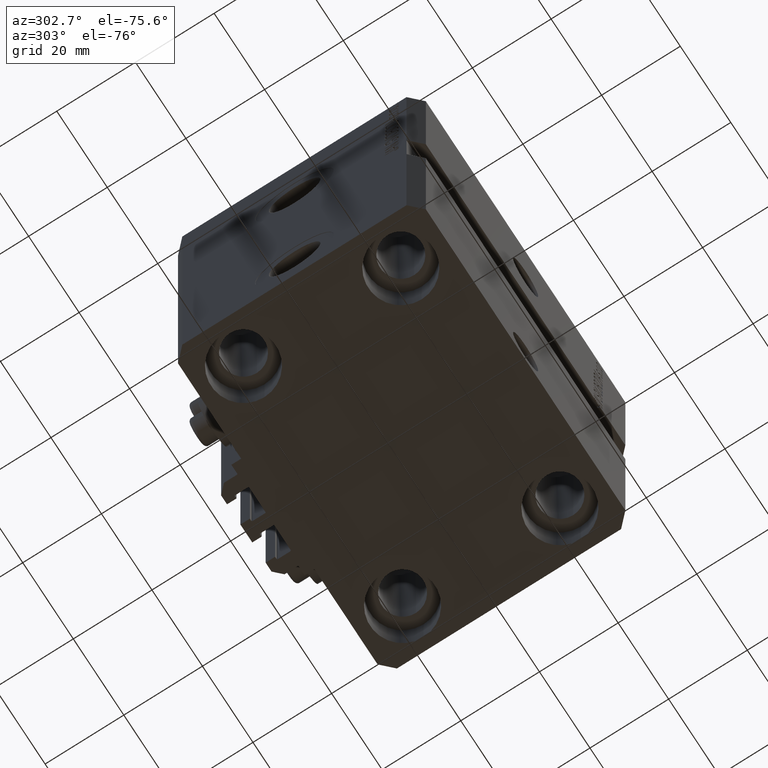
[diagram: clean part render]
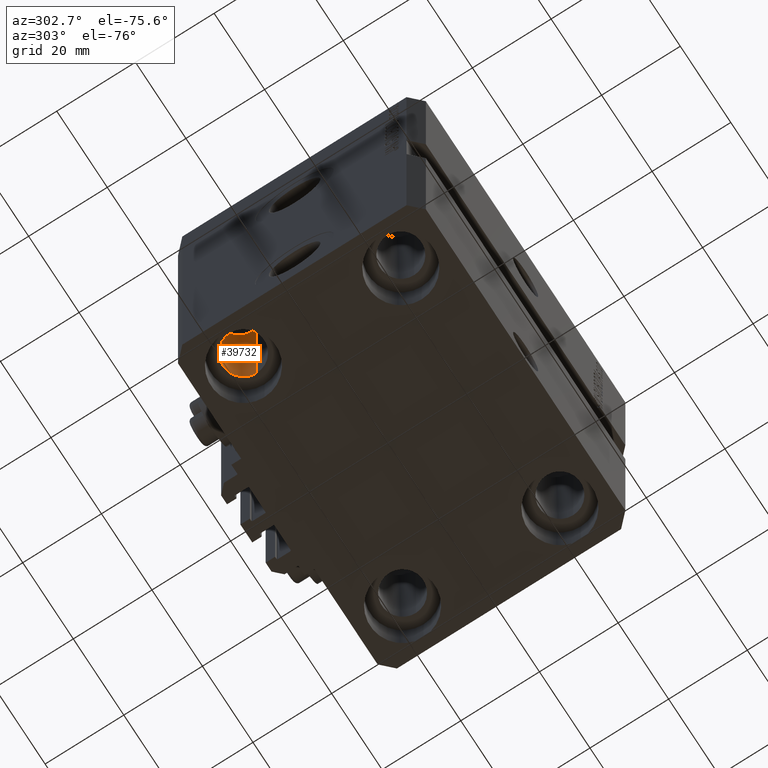
[diagram: same view with one face highlighted and labeled with its STEP entity id]
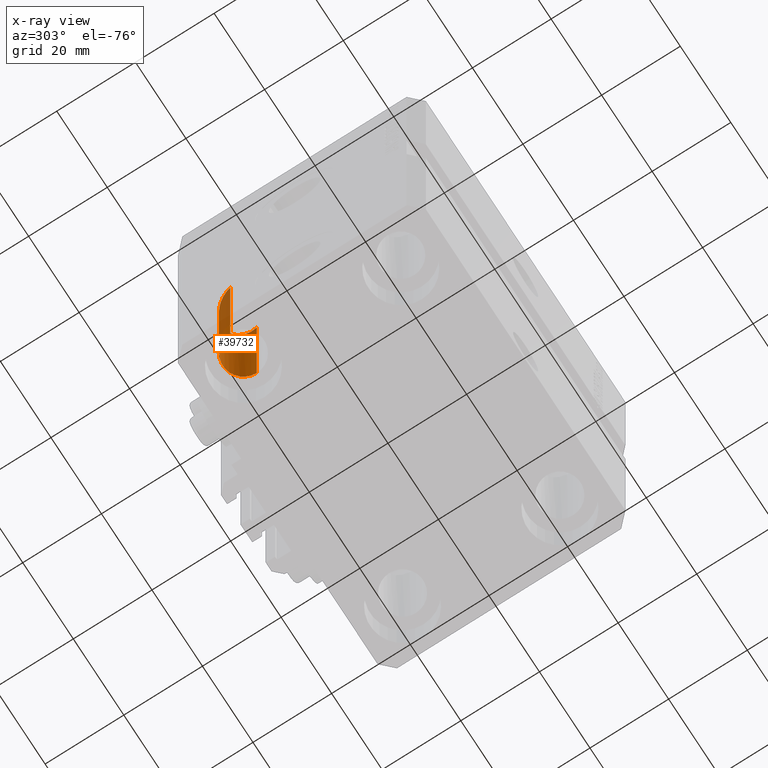
[diagram: x-ray of the same camera — body ghosted, the highlighted face saturated]
A machine part, auxiliary view. The second image highlights one B-rep face of the part: STEP entity #39732.
The next image is the same camera in x-ray: the body ghosted, the highlighted face saturated — about 21% of this face is hidden behind the body in this view.
In plain terms, the highlighted cylindrical surface (edge-blend (fillet) strip) has radius 5.25 mm, axis along (0, 0, 1).
Its self-contained STEP definition (entity closure, byte-faithful):
#135 =( BOUNDED_CURVE ( )  B_SPLINE_CURVE ( 3, ( #42618, #9658, #39028, #16633 ),
 .UNSPECIFIED., .F., .F. ) 
 B_SPLINE_CURVE_WITH_KNOTS ( ( 4, 4 ),
 ( 1.570796326794896558, 4.712388980384689674 ),
 .UNSPECIFIED. ) 
 CURVE ( )  GEOMETRIC_REPRESENTATION_ITEM ( )  RATIONAL_B_SPLINE_CURVE ( ( 1.000000000000000000, 0.3333333333333333703, 0.3333333333333333703, 1.000000000000000000 ) ) 
 REPRESENTATION_ITEM ( '' )  );
#1779 = EDGE_LOOP ( 'NONE', ( #47413, #43040, #2655, #38206 ) ) ;
#1963 = AXIS2_PLACEMENT_3D ( 'NONE', #41084, #15573, #40613 ) ;
#2655 = ORIENTED_EDGE ( 'NONE', *, *, #40528, .T. ) ;
#3417 = DIRECTION ( 'NONE',  ( -0.000000000000000000, -0.000000000000000000, 1.000000000000000000 ) ) ;
#4208 = VERTEX_POINT ( 'NONE', #19219 ) ;
#5924 = LINE ( 'NONE', #46107, #27386 ) ;
#6620 = FACE_OUTER_BOUND ( 'NONE', #1779, .T. ) ;
#9658 = CARTESIAN_POINT ( 'NONE',  ( -26.24999999999999645, 30.49999999999999645, -53.49999999999999289 ) ) ;
#12014 = AXIS2_PLACEMENT_3D ( 'NONE', #42956, #25610, #39826 ) ;
#15573 = DIRECTION ( 'NONE',  ( 0.000000000000000000, 0.000000000000000000, -1.000000000000000000 ) ) ;
#16633 = CARTESIAN_POINT ( 'NONE',  ( -36.74999999999999289, 20.00000000000000355, -43.00000000000000000 ) ) ;
#16814 = VERTEX_POINT ( 'NONE', #33312 ) ;
#19219 = CARTESIAN_POINT ( 'NONE',  ( -26.24999999999999645, 20.00000000000000355, -43.00000000000000000 ) ) ;
#20997 = LINE ( 'NONE', #46984, #39317 ) ;
#21287 = VERTEX_POINT ( 'NONE', #36106 ) ;
#21675 = CARTESIAN_POINT ( 'NONE',  ( -36.75000000000000000, 20.00000000000000000, -82.00000000000000000 ) ) ;
#24999 = EDGE_CURVE ( 'NONE', #42103, #16814, #20997, .T. ) ;
#25610 = DIRECTION ( 'NONE',  ( -0.000000000000000000, -0.000000000000000000, 1.000000000000000000 ) ) ;
#27386 = VECTOR ( 'NONE', #35525, 1000.000000000000000 ) ;
#29223 = CYLINDRICAL_SURFACE ( 'NONE', #12014, 5.250000000000000888 ) ;
#30371 = CIRCLE ( 'NONE', #1963, 5.249999999999997335 ) ;
#33312 = CARTESIAN_POINT ( 'NONE',  ( -36.74999999999999289, 20.00000000000000355, -43.00000000000000000 ) ) ;
#35525 = DIRECTION ( 'NONE',  ( -0.000000000000000000, -0.000000000000000000, 1.000000000000000000 ) ) ;
#36106 = CARTESIAN_POINT ( 'NONE',  ( -26.25000000000000000, 20.00000000000000000, -82.00000000000000000 ) ) ;
#38071 = EDGE_CURVE ( 'NONE', #42103, #21287, #30371, .T. ) ;
#38206 = ORIENTED_EDGE ( 'NONE', *, *, #41941, .T. ) ;
#39028 = CARTESIAN_POINT ( 'NONE',  ( -36.74999999999999289, 30.49999999999999645, -53.49999999999999289 ) ) ;
#39317 = VECTOR ( 'NONE', #3417, 1000.000000000000000 ) ;
#39732 = ADVANCED_FACE ( 'NONE', ( #6620 ), #29223, .F. ) ;
#39826 = DIRECTION ( 'NONE',  ( 1.000000000000000000, 0.000000000000000000, 0.000000000000000000 ) ) ;
#40528 = EDGE_CURVE ( 'NONE', #21287, #4208, #5924, .T. ) ;
#40613 = DIRECTION ( 'NONE',  ( -1.000000000000000000, 0.000000000000000000, 0.000000000000000000 ) ) ;
#41084 = CARTESIAN_POINT ( 'NONE',  ( -31.50000000000000000, 20.00000000000000000, -82.00000000000000000 ) ) ;
#41941 = EDGE_CURVE ( 'NONE', #4208, #16814, #135, .T. ) ;
#42103 = VERTEX_POINT ( 'NONE', #21675 ) ;
#42618 = CARTESIAN_POINT ( 'NONE',  ( -26.24999999999999645, 20.00000000000000355, -43.00000000000000000 ) ) ;
#42956 = CARTESIAN_POINT ( 'NONE',  ( -31.50000000000000000, 20.00000000000000000, -93.00000000000000000 ) ) ;
#43040 = ORIENTED_EDGE ( 'NONE', *, *, #38071, .T. ) ;
#46107 = CARTESIAN_POINT ( 'NONE',  ( -26.25000000000000000, 20.00000000000000000, -93.00000000000000000 ) ) ;
#46984 = CARTESIAN_POINT ( 'NONE',  ( -36.75000000000000000, 20.00000000000000000, -93.00000000000000000 ) ) ;
#47413 = ORIENTED_EDGE ( 'NONE', *, *, #24999, .F. ) ;